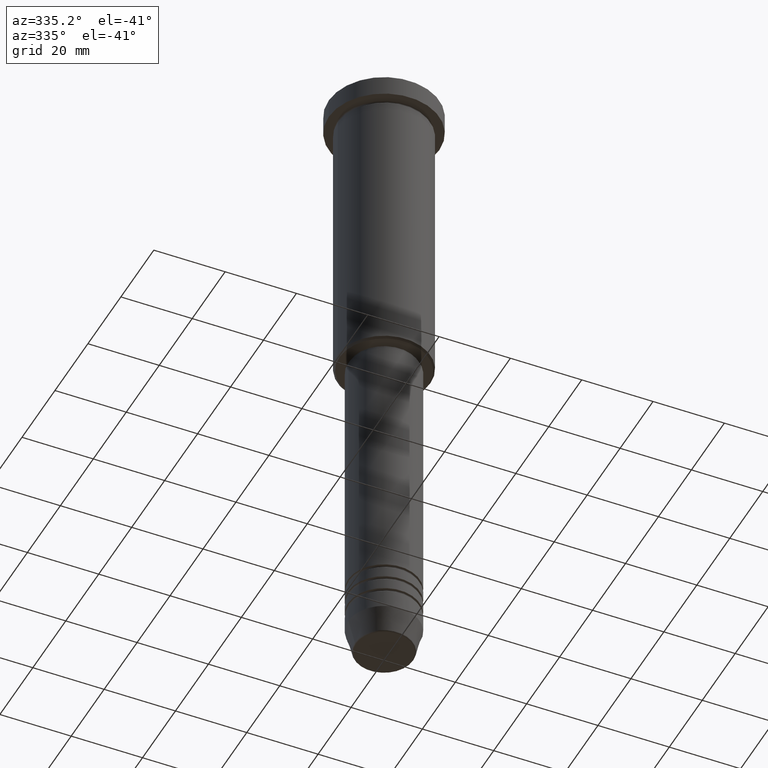
[diagram: clean part render]
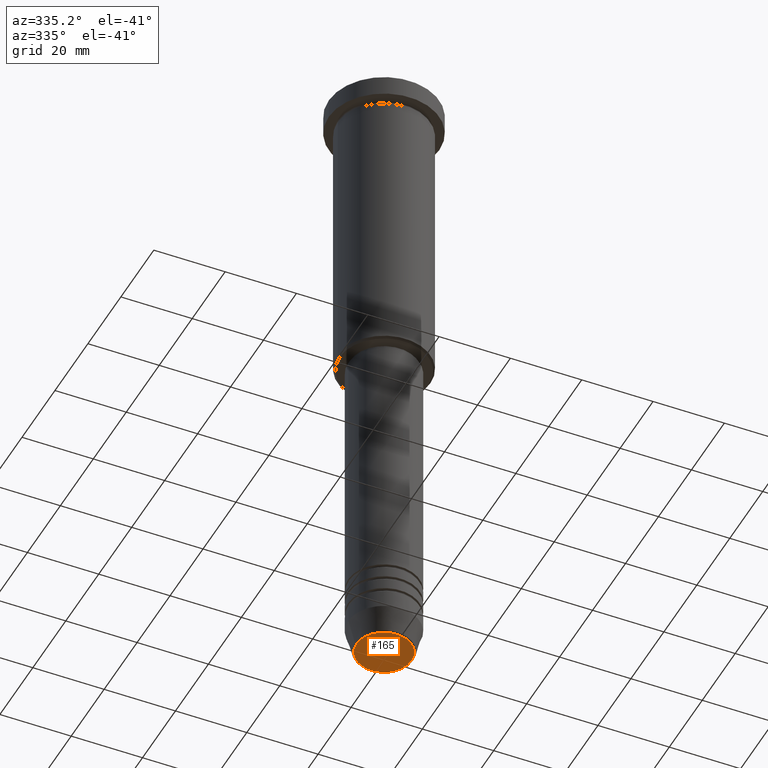
[diagram: same view with one face highlighted and labeled with its STEP entity id]
A machine part, auxiliary view. The second image highlights one B-rep face of the part: STEP entity #165.
In plain terms, the highlighted planar face has unit normal (0, -0, 1).
Its self-contained STEP definition (entity closure, byte-faithful):
#56 = EDGE_CURVE ( 'NONE', #791, #825, #71, .T. ) ;
#71 = CIRCLE ( 'NONE', #746, 7.740692158992660055 ) ;
#113 = CIRCLE ( 'NONE', #666, 7.740692158992660055 ) ;
#119 = DIRECTION ( 'NONE',  ( 1.000000000000000000, 0.000000000000000000, 0.000000000000000000 ) ) ;
#165 = ADVANCED_FACE ( 'NONE', ( #407 ), #877, .F. ) ;
#234 = DIRECTION ( 'NONE',  ( 0.000000000000000000, -0.000000000000000000, 1.000000000000000000 ) ) ;
#405 = CARTESIAN_POINT ( 'NONE',  ( 0.000000000000000000, 0.000000000000000000, -181.0000000000000000 ) ) ;
#407 = FACE_OUTER_BOUND ( 'NONE', #846, .T. ) ;
#488 = CARTESIAN_POINT ( 'NONE',  ( 0.000000000000000000, 0.000000000000000000, -181.0000000000000000 ) ) ;
#572 = DIRECTION ( 'NONE',  ( 0.000000000000000000, 0.000000000000000000, -1.000000000000000000 ) ) ;
#579 = CARTESIAN_POINT ( 'NONE',  ( 7.740692158992660055, 0.000000000000000000, -181.0000000000000000 ) ) ;
#602 = DIRECTION ( 'NONE',  ( 1.000000000000000000, 0.000000000000000000, 0.000000000000000000 ) ) ;
#666 = AXIS2_PLACEMENT_3D ( 'NONE', #488, #572, #119 ) ;
#743 = ORIENTED_EDGE ( 'NONE', *, *, #56, .T. ) ;
#746 = AXIS2_PLACEMENT_3D ( 'NONE', #405, #982, #778 ) ;
#778 = DIRECTION ( 'NONE',  ( 1.000000000000000000, 0.000000000000000000, 0.000000000000000000 ) ) ;
#786 = ORIENTED_EDGE ( 'NONE', *, *, #1103, .T. ) ;
#787 = CARTESIAN_POINT ( 'NONE',  ( 0.000000000000000000, 0.000000000000000000, -181.0000000000000000 ) ) ;
#791 = VERTEX_POINT ( 'NONE', #579 ) ;
#825 = VERTEX_POINT ( 'NONE', #949 ) ;
#846 = EDGE_LOOP ( 'NONE', ( #743, #786 ) ) ;
#877 = PLANE ( 'NONE',  #1156 ) ;
#949 = CARTESIAN_POINT ( 'NONE',  ( -7.740692158992660055, 9.775343368540039135E-16, -181.0000000000000000 ) ) ;
#982 = DIRECTION ( 'NONE',  ( 0.000000000000000000, 0.000000000000000000, -1.000000000000000000 ) ) ;
#1103 = EDGE_CURVE ( 'NONE', #825, #791, #113, .T. ) ;
#1156 = AXIS2_PLACEMENT_3D ( 'NONE', #787, #234, #602 ) ;